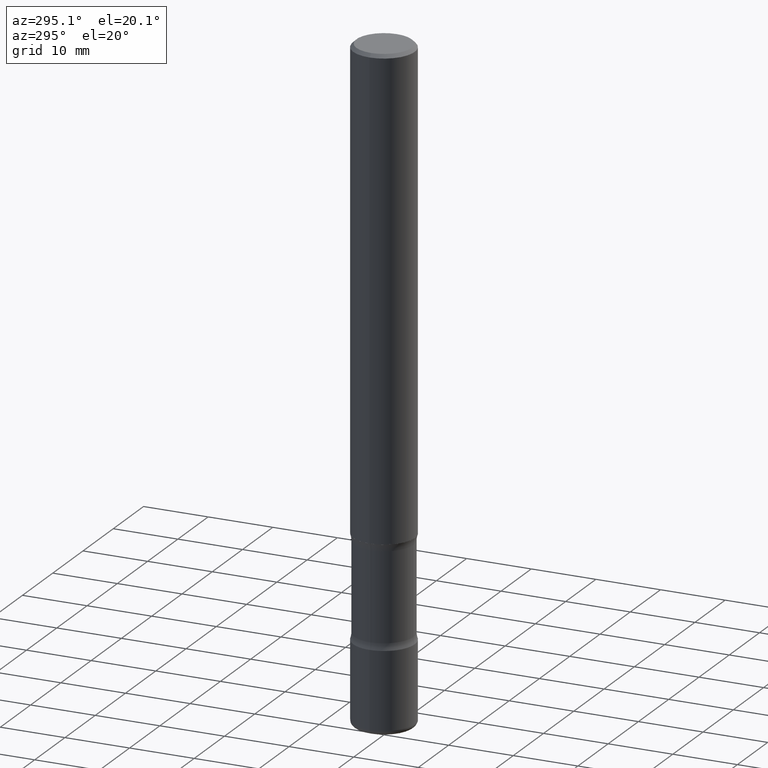
[diagram: clean part render]
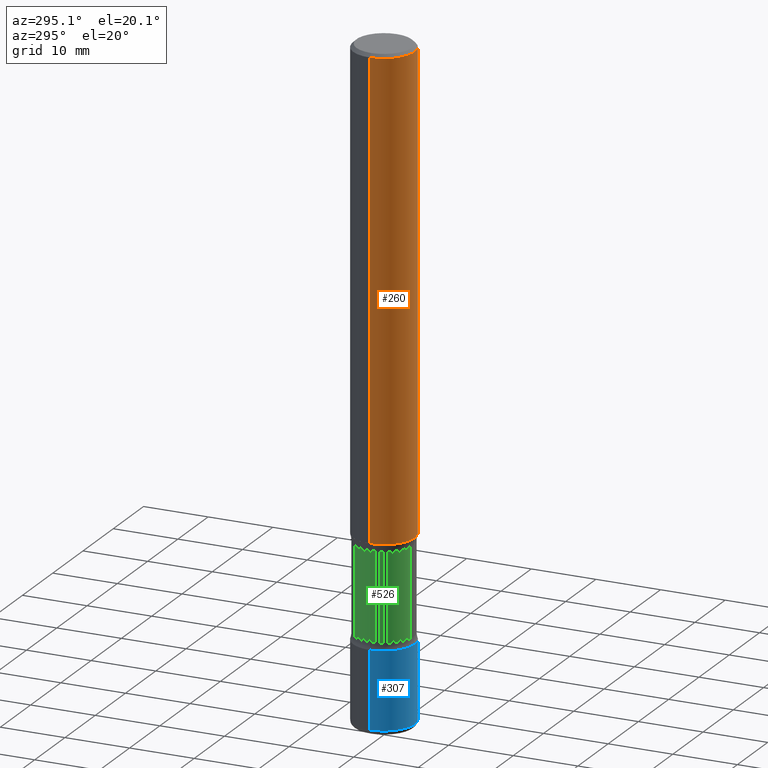
[diagram: same view with three faces highlighted in distinct colors, each labeled with its STEP entity id]
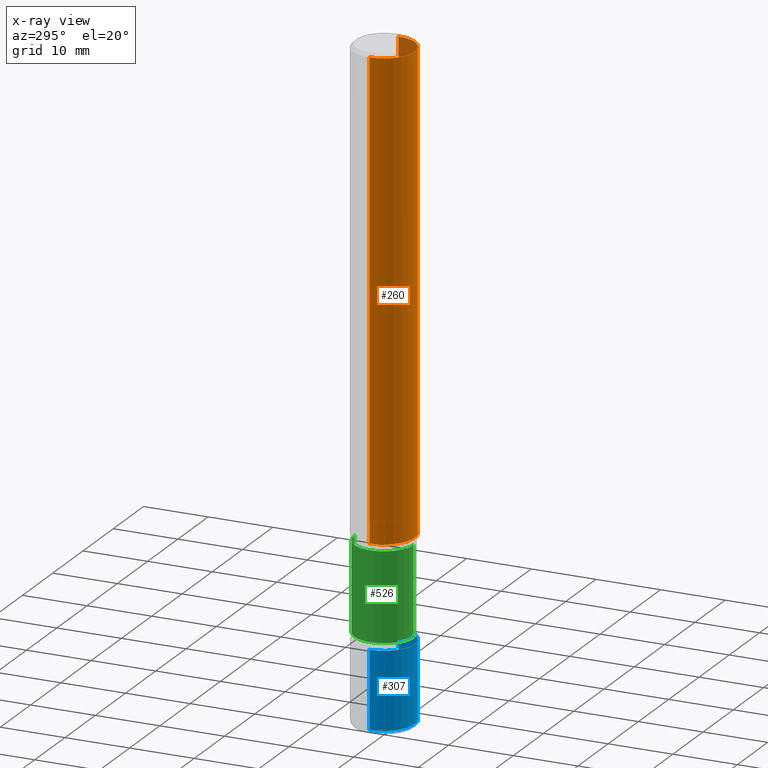
[diagram: x-ray of the same camera — body ghosted, the three highlighted faces saturated]
A machine part, auxiliary view with three faces highlighted in distinct colors.
The next image is the same camera in x-ray (body ghosted, the three faces saturated) — at least one of them is partly hidden behind the body in this view.
Their STEP definitions:

[orange] entity #260 — the highlighted cylindrical surface (edge-blend (fillet) strip) has radius 4.7625 mm, axis along (-0, 0, 1).
#41 = ORIENTED_EDGE ( 'NONE', *, *, #127, .F. ) ;
#62 = AXIS2_PLACEMENT_3D ( 'NONE', #294, #545, #665 ) ;
#64 = ORIENTED_EDGE ( 'NONE', *, *, #511, .T. ) ;
#71 = ORIENTED_EDGE ( 'NONE', *, *, #544, .T. ) ;
#88 = VERTEX_POINT ( 'NONE', #380 ) ;
#101 = CIRCLE ( 'NONE', #62, 0.1874999999999998057 ) ;
#112 = AXIS2_PLACEMENT_3D ( 'NONE', #618, #198, #556 ) ;
#118 = ORIENTED_EDGE ( 'NONE', *, *, #803, .F. ) ;
#127 = EDGE_CURVE ( 'NONE', #717, #408, #753, .T. ) ;
#178 = EDGE_LOOP ( 'NONE', ( #41, #64, #71, #118 ) ) ;
#198 = DIRECTION ( 'NONE',  ( -2.445468806185136597E-29, 3.491481338843145583E-15, 1.000000000000000000 ) ) ;
#260 = ADVANCED_FACE ( 'NONE', ( #533 ), #393, .T. ) ;
#264 = VECTOR ( 'NONE', #439, 39.37007874015748143 ) ;
#287 = CARTESIAN_POINT ( 'NONE',  ( -0.1874999999999998057, 1.239475875289310527E-15, -0.02000000000000004205 ) ) ;
#294 = CARTESIAN_POINT ( 'NONE',  ( 4.890937612370283668E-31, -6.982962677686305168E-17, -0.02000000000000004205 ) ) ;
#329 = VECTOR ( 'NONE', #433, 39.37007874015748143 ) ;
#339 = CARTESIAN_POINT ( 'NONE',  ( 0.000000000000000000, 0.000000000000000000, 0.000000000000000000 ) ) ;
#372 = CARTESIAN_POINT ( 'NONE',  ( 0.1874999999999999167, -1.309305502066174219E-15, 9.142831454617375408E-30 ) ) ;
#380 = CARTESIAN_POINT ( 'NONE',  ( 0.1874999999999998057, -1.356173001359023888E-15, -0.02000000000000004205 ) ) ;
#393 = CYLINDRICAL_SURFACE ( 'NONE', #775, 0.1874999999999999167 ) ;
#405 = DIRECTION ( 'NONE',  ( 1.000000000000000000, -6.982962677686265922E-15, 4.876176775795935793E-29 ) ) ;
#408 = VERTEX_POINT ( 'NONE', #287 ) ;
#433 = DIRECTION ( 'NONE',  ( -2.445468806185136877E-29, 3.491481338843145188E-15, 1.000000000000000000 ) ) ;
#439 = DIRECTION ( 'NONE',  ( -2.445468806185136877E-29, 3.491481338843145188E-15, 1.000000000000000000 ) ) ;
#444 = CARTESIAN_POINT ( 'NONE',  ( -0.1874999999999999167, 1.332267629550187257E-15, -9.223003294227943787E-30 ) ) ;
#470 = CARTESIAN_POINT ( 'NONE',  ( -0.1874999999999999722, -3.721651608425263776E-15, -2.875000000000000000 ) ) ;
#511 = EDGE_CURVE ( 'NONE', #717, #783, #514, .T. ) ;
#514 = CIRCLE ( 'NONE', #112, 0.1875000000000000278 ) ;
#533 = FACE_OUTER_BOUND ( 'NONE', #178, .T. ) ;
#544 = EDGE_CURVE ( 'NONE', #783, #88, #699, .T. ) ;
#545 = DIRECTION ( 'NONE',  ( -2.445468806185136597E-29, 3.491481338843145583E-15, 1.000000000000000000 ) ) ;
#556 = DIRECTION ( 'NONE',  ( 1.000000000000000000, -6.982962677686261189E-15, 0.000000000000000000 ) ) ;
#618 = CARTESIAN_POINT ( 'NONE',  ( 7.030722817782267716E-29, -1.003800884917404311E-14, -2.875000000000000000 ) ) ;
#665 = DIRECTION ( 'NONE',  ( 1.000000000000000000, -6.982962677686266711E-15, 0.000000000000000000 ) ) ;
#699 = LINE ( 'NONE', #372, #329 ) ;
#717 = VERTEX_POINT ( 'NONE', #470 ) ;
#753 = LINE ( 'NONE', #444, #264 ) ;
#765 = CARTESIAN_POINT ( 'NONE',  ( 0.1875000000000000278, -1.134731435124021811E-14, -2.875000000000000000 ) ) ;
#775 = AXIS2_PLACEMENT_3D ( 'NONE', #339, #785, #405 ) ;
#783 = VERTEX_POINT ( 'NONE', #765 ) ;
#785 = DIRECTION ( 'NONE',  ( -2.445468806185136597E-29, 3.491481338843145583E-15, 1.000000000000000000 ) ) ;
#803 = EDGE_CURVE ( 'NONE', #408, #88, #101, .T. ) ;

[blue] entity #307 — the highlighted cylindrical surface (edge-blend (fillet) strip) has radius 4.7625 mm, axis along (-0, 0, 1).
#34 = FACE_OUTER_BOUND ( 'NONE', #374, .T. ) ;
#44 = EDGE_CURVE ( 'NONE', #415, #276, #59, .T. ) ;
#52 = CARTESIAN_POINT ( 'NONE',  ( -0.1875000000000000278, -1.170841517102895815E-14, -3.500000000000000000 ) ) ;
#59 = CIRCLE ( 'NONE', #617, 0.1875000000000000278 ) ;
#67 = DIRECTION ( 'NONE',  ( 1.000000000000000000, -6.982962677686261189E-15, 0.000000000000000000 ) ) ;
#98 = DIRECTION ( 'NONE',  ( 1.000000000000000000, -6.982962677686265922E-15, 4.876176775795935793E-29 ) ) ;
#104 = DIRECTION ( 'NONE',  ( 1.000000000000000000, -6.982962677686261189E-15, 0.000000000000000000 ) ) ;
#156 = ORIENTED_EDGE ( 'NONE', *, *, #44, .T. ) ;
#172 = AXIS2_PLACEMENT_3D ( 'NONE', #399, #267, #98 ) ;
#209 = CARTESIAN_POINT ( 'NONE',  ( 0.1874999999999999722, -1.517048641727346397E-14, -3.970000000000000195 ) ) ;
#230 = EDGE_CURVE ( 'NONE', #427, #390, #551, .T. ) ;
#236 = LINE ( 'NONE', #795, #250 ) ;
#250 = VECTOR ( 'NONE', #361, 39.37007874015748143 ) ;
#267 = DIRECTION ( 'NONE',  ( -2.445468806185136597E-29, 3.491481338843145583E-15, 1.000000000000000000 ) ) ;
#276 = VERTEX_POINT ( 'NONE', #209 ) ;
#280 = CARTESIAN_POINT ( 'NONE',  ( 8.559140821647976968E-29, -1.222018468595100934E-14, -3.500000000000000000 ) ) ;
#295 = LINE ( 'NONE', #729, #553 ) ;
#307 = ADVANCED_FACE ( 'NONE', ( #34 ), #402, .T. ) ;
#316 = AXIS2_PLACEMENT_3D ( 'NONE', #280, #333, #104 ) ;
#320 = CARTESIAN_POINT ( 'NONE',  ( 9.708511160554992872E-29, -1.386118091520728738E-14, -3.970000000000000195 ) ) ;
#333 = DIRECTION ( 'NONE',  ( -2.445468806185136597E-29, 3.491481338843145583E-15, 1.000000000000000000 ) ) ;
#342 = ORIENTED_EDGE ( 'NONE', *, *, #453, .F. ) ;
#355 = CARTESIAN_POINT ( 'NONE',  ( -0.1874999999999999722, -1.252891328565709953E-14, -3.970000000000000195 ) ) ;
#361 = DIRECTION ( 'NONE',  ( -2.445468806185136877E-29, 3.491481338843145188E-15, 1.000000000000000000 ) ) ;
#374 = EDGE_LOOP ( 'NONE', ( #342, #156, #466, #657 ) ) ;
#390 = VERTEX_POINT ( 'NONE', #414 ) ;
#399 = CARTESIAN_POINT ( 'NONE',  ( 0.000000000000000000, 0.000000000000000000, 0.000000000000000000 ) ) ;
#402 = CYLINDRICAL_SURFACE ( 'NONE', #172, 0.1875000000000000278 ) ;
#414 = CARTESIAN_POINT ( 'NONE',  ( 0.1875000000000000278, -1.352949018801718277E-14, -3.500000000000000000 ) ) ;
#415 = VERTEX_POINT ( 'NONE', #355 ) ;
#427 = VERTEX_POINT ( 'NONE', #52 ) ;
#430 = EDGE_CURVE ( 'NONE', #276, #390, #295, .T. ) ;
#453 = EDGE_CURVE ( 'NONE', #415, #427, #236, .T. ) ;
#466 = ORIENTED_EDGE ( 'NONE', *, *, #430, .T. ) ;
#484 = DIRECTION ( 'NONE',  ( -2.445468806185136877E-29, 3.491481338843145188E-15, 1.000000000000000000 ) ) ;
#551 = CIRCLE ( 'NONE', #316, 0.1875000000000000278 ) ;
#553 = VECTOR ( 'NONE', #484, 39.37007874015748143 ) ;
#617 = AXIS2_PLACEMENT_3D ( 'NONE', #320, #758, #67 ) ;
#657 = ORIENTED_EDGE ( 'NONE', *, *, #230, .F. ) ;
#729 = CARTESIAN_POINT ( 'NONE',  ( 0.1875000000000000278, -1.309305502066175008E-15, 9.142831454617381013E-30 ) ) ;
#758 = DIRECTION ( 'NONE',  ( -2.445468806185136597E-29, 3.491481338843145583E-15, 1.000000000000000000 ) ) ;
#795 = CARTESIAN_POINT ( 'NONE',  ( -0.1875000000000000278, 1.332267629550188046E-15, -9.223003294227947991E-30 ) ) ;

[green] entity #526 — the highlighted cylindrical surface (edge-blend (fillet) strip) has radius 4.572 mm, axis along (0, -0, -1).
#14 = VERTEX_POINT ( 'NONE', #796 ) ;
#18 = DIRECTION ( 'NONE',  ( 2.443605537822500206E-29, -3.494149645189090210E-15, -1.000000000000000000 ) ) ;
#35 = CIRCLE ( 'NONE', #489, 0.1799999999999998823 ) ;
#55 = ORIENTED_EDGE ( 'NONE', *, *, #215, .F. ) ;
#73 = AXIS2_PLACEMENT_3D ( 'NONE', #123, #559, #452 ) ;
#78 = ORIENTED_EDGE ( 'NONE', *, *, #379, .T. ) ;
#84 = AXIS2_PLACEMENT_3D ( 'NONE', #326, #18, #181 ) ;
#123 = CARTESIAN_POINT ( 'NONE',  ( 9.769103694291262738E-29, -1.395032945633236056E-14, -3.995154743233019445 ) ) ;
#148 = CARTESIAN_POINT ( 'NONE',  ( -1.260616507090433870E-15, -0.1800000000000120393, -3.457353194726919376 ) ) ;
#180 = CYLINDRICAL_SURFACE ( 'NONE', #73, 0.1799999999999999378 ) ;
#181 = DIRECTION ( 'NONE',  ( 6.982962677686265133E-15, 1.000000000000000000, -3.035386659626959132E-15 ) ) ;
#201 = CARTESIAN_POINT ( 'NONE',  ( -1.260616507090447477E-15, -0.1800000000000100686, -2.917646805273079291 ) ) ;
#203 = VERTEX_POINT ( 'NONE', #700 ) ;
#215 = EDGE_CURVE ( 'NONE', #281, #203, #761, .T. ) ;
#223 = VECTOR ( 'NONE', #515, 39.37007874015748143 ) ;
#233 = ORIENTED_EDGE ( 'NONE', *, *, #779, .F. ) ;
#247 = VECTOR ( 'NONE', #604, 39.37007874015748143 ) ;
#266 = CARTESIAN_POINT ( 'NONE',  ( -1.234889639598777160E-15, -0.1800000000000138989, -3.995154743233019001 ) ) ;
#275 = DIRECTION ( 'NONE',  ( 6.982962677686266711E-15, 1.000000000000000000, -3.035386659626961104E-15 ) ) ;
#281 = VERTEX_POINT ( 'NONE', #148 ) ;
#310 = EDGE_CURVE ( 'NONE', #787, #14, #35, .T. ) ;
#326 = CARTESIAN_POINT ( 'NONE',  ( 8.454928852112242500E-29, -1.207117036643762880E-14, -3.457353194726919821 ) ) ;
#347 = CARTESIAN_POINT ( 'NONE',  ( 7.136099330044652239E-29, -1.018535547722120939E-14, -2.917646805273079735 ) ) ;
#379 = EDGE_CURVE ( 'NONE', #14, #203, #791, .T. ) ;
#420 = CARTESIAN_POINT ( 'NONE',  ( 1.256933281983625156E-15, 0.1799999999999859490, -3.995154743233019889 ) ) ;
#452 = DIRECTION ( 'NONE',  ( 6.982962677686265133E-15, 1.000000000000000000, -3.035386659626960315E-15 ) ) ;
#469 = DIRECTION ( 'NONE',  ( 2.443605537822500206E-29, -3.494149645189090210E-15, -1.000000000000000000 ) ) ;
#489 = AXIS2_PLACEMENT_3D ( 'NONE', #347, #469, #275 ) ;
#510 = FACE_OUTER_BOUND ( 'NONE', #664, .T. ) ;
#515 = DIRECTION ( 'NONE',  ( 2.443605537822499926E-29, -3.494149645189090604E-15, -1.000000000000000000 ) ) ;
#526 = ADVANCED_FACE ( 'NONE', ( #510 ), #180, .T. ) ;
#559 = DIRECTION ( 'NONE',  ( 2.443605537822500206E-29, -3.494149645189090210E-15, -1.000000000000000000 ) ) ;
#598 = LINE ( 'NONE', #266, #223 ) ;
#604 = DIRECTION ( 'NONE',  ( 2.443605537822499926E-29, -3.494149645189090604E-15, -1.000000000000000000 ) ) ;
#664 = EDGE_LOOP ( 'NONE', ( #233, #706, #78, #55 ) ) ;
#700 = CARTESIAN_POINT ( 'NONE',  ( 1.256933281983612140E-15, 0.1799999999999879474, -3.457353194726920265 ) ) ;
#706 = ORIENTED_EDGE ( 'NONE', *, *, #310, .T. ) ;
#761 = CIRCLE ( 'NONE', #84, 0.1799999999999999933 ) ;
#779 = EDGE_CURVE ( 'NONE', #787, #281, #598, .T. ) ;
#787 = VERTEX_POINT ( 'NONE', #201 ) ;
#791 = LINE ( 'NONE', #420, #247 ) ;
#796 = CARTESIAN_POINT ( 'NONE',  ( 1.256933281983598335E-15, 0.1799999999999897238, -2.917646805273080179 ) ) ;